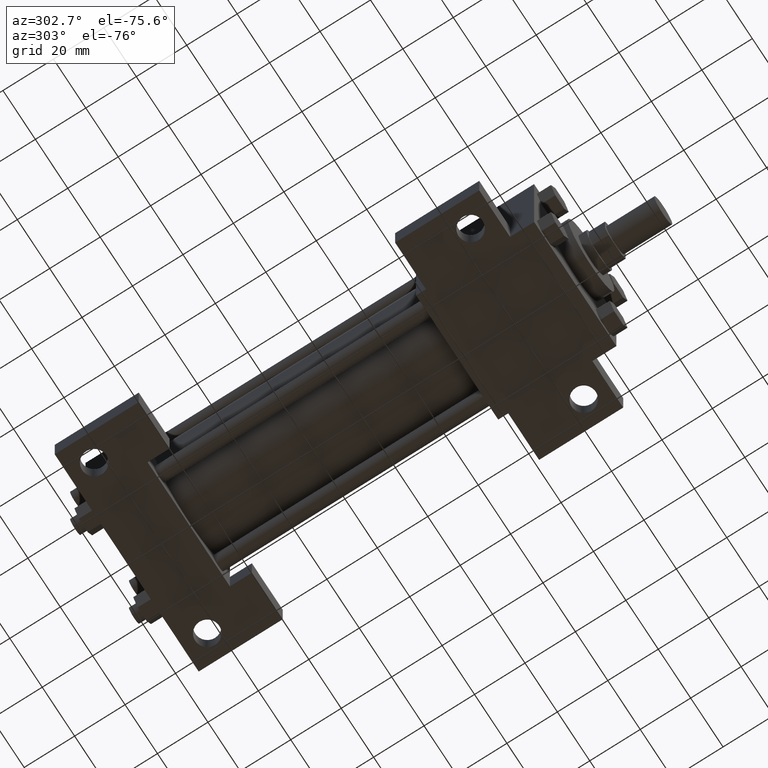
[diagram: clean part render]
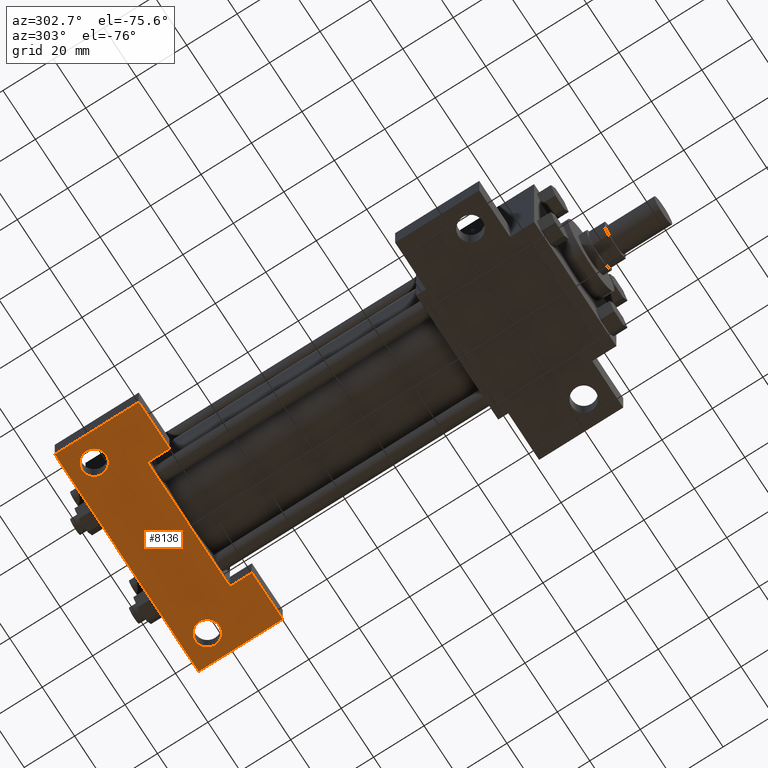
[diagram: same view with one face highlighted and labeled with its STEP entity id]
A machine part, auxiliary view. The second image highlights one B-rep face of the part: STEP entity #8136.
In plain terms, the highlighted planar face has unit normal (0, 0, 1).
Its self-contained STEP definition (entity closure, byte-faithful):
#5821=EDGE_CURVE('',#5827,#5827,#5822,.T.);
#5822=CIRCLE('',#5823,2.778125000E+000);
#5823=AXIS2_PLACEMENT_3D('',#5824,#5825,#5826);
#5824=CARTESIAN_POINT('',(0.000000000E+000,1.785937500E+002,-2.540000000E+001));
#5825=DIRECTION('',(0.0E+000,0.0E+000,1.0E+000));
#5826=DIRECTION('',(1.0E+000,0.0E+000,0.0E+000));
#5827=VERTEX_POINT('',#5828);
#5828=CARTESIAN_POINT('',(2.778125000E+000,1.785937500E+002,-2.540000000E+001));
#5928=EDGE_CURVE('',#5934,#5934,#5929,.T.);
#5929=CIRCLE('',#5930,4.762500000E+000);
#5930=AXIS2_PLACEMENT_3D('',#5931,#5932,#5933);
#5931=CARTESIAN_POINT('',(-3.492500000E+001,1.841500000E+002,-2.540000000E+001));
#5932=DIRECTION('',(0.0E+000,0.0E+000,1.0E+000));
#5933=DIRECTION('',(1.0E+000,0.0E+000,0.0E+000));
#5934=VERTEX_POINT('',#5935);
#5935=CARTESIAN_POINT('',(-3.016250000E+001,1.841500000E+002,-2.540000000E+001));
#5993=EDGE_CURVE('',#5999,#5999,#5994,.T.);
#5994=CIRCLE('',#5995,4.762500000E+000);
#5995=AXIS2_PLACEMENT_3D('',#5996,#5997,#5998);
#5996=CARTESIAN_POINT('',(3.492500000E+001,1.841500000E+002,-2.540000000E+001));
#5997=DIRECTION('',(0.0E+000,0.0E+000,1.0E+000));
#5998=DIRECTION('',(1.0E+000,0.0E+000,0.0E+000));
#5999=VERTEX_POINT('',#6000);
#6000=CARTESIAN_POINT('',(3.968750000E+001,1.841500000E+002,-2.540000000E+001));
#6007=FACE_OUTER_BOUND('',#6011,.T.);
#6008=FACE_BOUND('',#6012,.T.);
#6009=FACE_BOUND('',#6013,.T.);
#6010=FACE_BOUND('',#6014,.T.);
#6011=EDGE_LOOP('',(#6015));
#6012=EDGE_LOOP('',(#6016));
#6013=EDGE_LOOP('',(#6017));
#6014=EDGE_LOOP('',(#6018,#6019,#6020,#6021,#6022,#6023,#6024,#6025));
#6015=ORIENTED_EDGE('',*,*,#5821,.T.);
#6016=ORIENTED_EDGE('',*,*,#5928,.T.);
#6017=ORIENTED_EDGE('',*,*,#5993,.T.);
#6018=ORIENTED_EDGE('',*,*,#6026,.T.);
#6019=ORIENTED_EDGE('',*,*,#6035,.T.);
#6020=ORIENTED_EDGE('',*,*,#6042,.T.);
#6021=ORIENTED_EDGE('',*,*,#6049,.F.);
#6022=ORIENTED_EDGE('',*,*,#6056,.F.);
#6023=ORIENTED_EDGE('',*,*,#6063,.T.);
#6024=ORIENTED_EDGE('',*,*,#6066,.F.);
#6025=ORIENTED_EDGE('',*,*,#6073,.T.);
#6026=EDGE_CURVE('',#6031,#6032,#6027,.T.);
#6027=LINE('',#6028,#6029);
#6028=CARTESIAN_POINT('',(-2.540000000E+001,1.936750000E+002,-2.540000000E+001));
#6029=VECTOR('',#6030,1.0E+000);
#6030=DIRECTION('',(0.0E+000,-1.0E+000,0.0E+000));
#6031=VERTEX_POINT('',#6033);
#6032=VERTEX_POINT('',#6034);
#6033=CARTESIAN_POINT('',(-2.540000000E+001,1.690687500E+002,-2.540000000E+001));
#6034=CARTESIAN_POINT('',(-2.540000000E+001,1.603375000E+002,-2.540000000E+001));
#6035=EDGE_CURVE('',#6032,#6040,#6036,.T.);
#6036=LINE('',#6037,#6038);
#6037=CARTESIAN_POINT('',(4.445000000E+001,1.603375000E+002,-2.540000000E+001));
#6038=VECTOR('',#6039,1.0E+000);
#6039=DIRECTION('',(-1.0E+000,0.0E+000,0.0E+000));
#6040=VERTEX_POINT('',#6041);
#6041=CARTESIAN_POINT('',(-4.445000000E+001,1.603375000E+002,-2.540000000E+001));
#6042=EDGE_CURVE('',#6040,#6047,#6043,.T.);
#6043=LINE('',#6044,#6045);
#6044=CARTESIAN_POINT('',(-4.445000000E+001,1.603375000E+002,-2.540000000E+001));
#6045=VECTOR('',#6046,1.0E+000);
#6046=DIRECTION('',(0.0E+000,1.0E+000,0.0E+000));
#6047=VERTEX_POINT('',#6048);
#6048=CARTESIAN_POINT('',(-4.445000000E+001,1.936750000E+002,-2.540000000E+001));
#6049=EDGE_CURVE('',#6054,#6047,#6050,.T.);
#6050=LINE('',#6051,#6052);
#6051=CARTESIAN_POINT('',(2.540000000E+001,1.936750000E+002,-2.540000000E+001));
#6052=VECTOR('',#6053,1.0E+000);
#6053=DIRECTION('',(-1.0E+000,0.0E+000,0.0E+000));
#6054=VERTEX_POINT('',#6055);
#6055=CARTESIAN_POINT('',(4.445000000E+001,1.936750000E+002,-2.540000000E+001));
#6056=EDGE_CURVE('',#6061,#6054,#6057,.T.);
#6057=LINE('',#6058,#6059);
#6058=CARTESIAN_POINT('',(4.445000000E+001,1.603375000E+002,-2.540000000E+001));
#6059=VECTOR('',#6060,1.0E+000);
#6060=DIRECTION('',(0.0E+000,1.0E+000,0.0E+000));
#6061=VERTEX_POINT('',#6062);
#6062=CARTESIAN_POINT('',(4.445000000E+001,1.603375000E+002,-2.540000000E+001));
#6063=EDGE_CURVE('',#6061,#6064,#6036,.T.);
#6064=VERTEX_POINT('',#6065);
#6065=CARTESIAN_POINT('',(2.540000000E+001,1.603375000E+002,-2.540000000E+001));
#6066=EDGE_CURVE('',#6071,#6064,#6067,.T.);
#6067=LINE('',#6068,#6069);
#6068=CARTESIAN_POINT('',(2.540000000E+001,1.936750000E+002,-2.540000000E+001));
#6069=VECTOR('',#6070,1.0E+000);
#6070=DIRECTION('',(0.0E+000,-1.0E+000,0.0E+000));
#6071=VERTEX_POINT('',#6072);
#6072=CARTESIAN_POINT('',(2.540000000E+001,1.690687500E+002,-2.540000000E+001));
#6073=EDGE_CURVE('',#6071,#6031,#6074,.T.);
#6074=LINE('',#6075,#6076);
#6075=CARTESIAN_POINT('',(2.540000000E+001,1.690687500E+002,-2.540000000E+001));
#6076=VECTOR('',#6077,1.0E+000);
#6077=DIRECTION('',(-1.0E+000,0.0E+000,0.0E+000));
#6078=PLANE('',#6079);
#6079=AXIS2_PLACEMENT_3D('',#6080,#6081,#6082);
#6080=CARTESIAN_POINT('',(4.445000000E+001,1.936750000E+002,-2.540000000E+001));
#6081=DIRECTION('',(0.0E+000,0.0E+000,1.0E+000));
#6082=DIRECTION('',(1.0E+000,0.0E+000,0.0E+000));
#8136=ADVANCED_FACE('',(#6007,#6008,#6009,#6010),#6078,.F.);